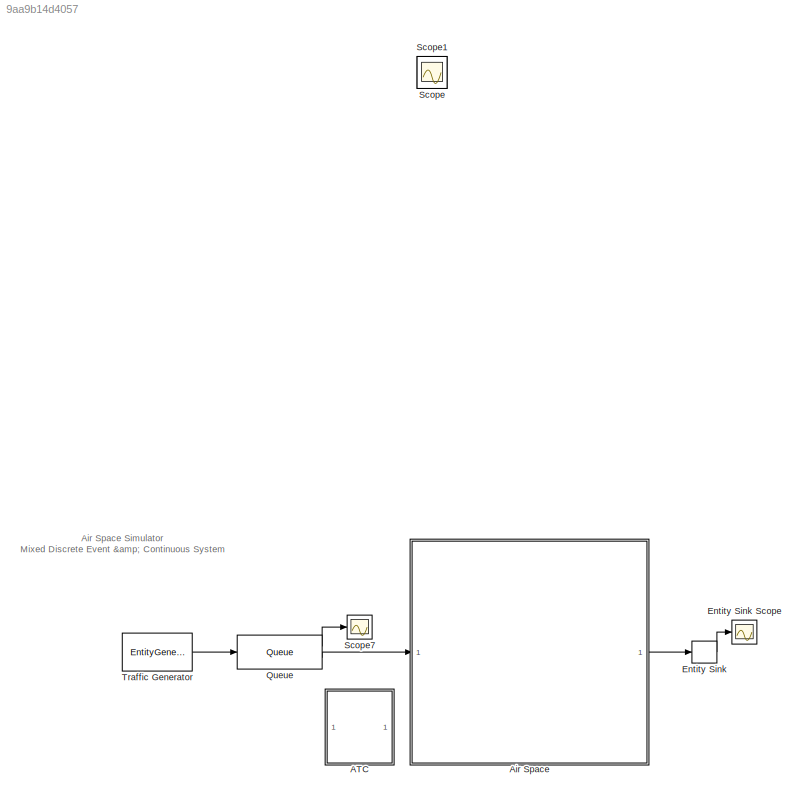
MODEL slx_9aa9b14d4057
KIND model
CONFIG AbsTol = auto
CONFIG EnableMultiTasking = off
CONFIG FixedStep = 1
CONFIG InitFcn = clear all\nclc\n\n%run config_Houston.m\nrun config_Malaga.m\n\nload('PBNsim_buses');
CONFIG MaxStep = auto
CONFIG MinStep = auto
CONFIG RelTol = 1e-3
CONFIG SampleTimeConstraint = Unconstrained
CONFIG SolverName = ode3
CONFIG StartFcn = rng('shuffle');\n
CONFIG StartTime = 0.0
CONFIG StopTime = 5000
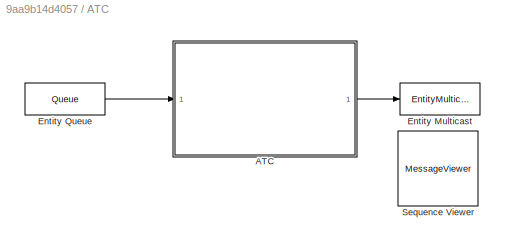
BLOCK [SubSystem] ATC
  Ports = []
  RequestExecContextInheritance = off
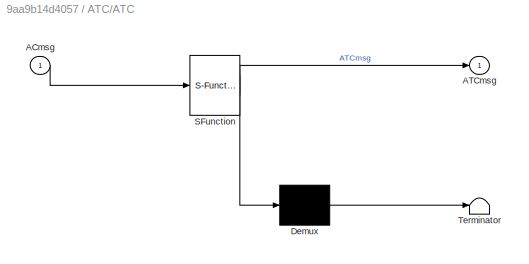
BLOCK [SubSystem] ATC/ATC
  ErrorFcn = Stateflow.Translate.translate
  PermitHierarchicalResolution = ExplicitOnly
  Ports = [1, 1]
  RequestExecContextInheritance = off
  SFBlockType = Chart
  TreatAsAtomicUnit = on
BLOCK [Demux] ATC/ATC/ Demux 
  Outputs = 1
  Ports = [1, 1]
BLOCK [S-Function] ATC/ATC/ SFunction 
  EnableBusSupport = on
  FunctionName = sf_sfun
  InputPortMessageModes = m
  OutputPortMessageModes = n,m
  Parameters = WP,WPabort,WPnext,WPspeed
  PortCounts = [1 2]
  Ports = [1, 2]
  SFcnIsStateOwnerBlock = off
  SFunctionDeploymentMode = off
  Tag = Stateflow S-Function 2
BLOCK [Terminator] ATC/ATC/ Terminator 
BLOCK [Inport] ATC/ATC/ACmsg
BLOCK [Outport] ATC/ATC/ATCmsg
  VectorParamsAs1DForOutWhenUnconnected = off
BLOCK [EntityMulticast] ATC/Entity Multicast
  InputPortMessageModes = m
  MulticastTag = ATCcomm
BLOCK [Queue] ATC/Entity Queue
  Capacity = 100
  EntityArrivalSource = Multicast
  MulticastTag = ACcomm
  OutputPortMap = o5
  OutputPortMessageModes = m
  Ports = [0, 1]
BLOCK [MessageViewer] ATC/Sequence Viewer
  Commented = on
  History = 1000
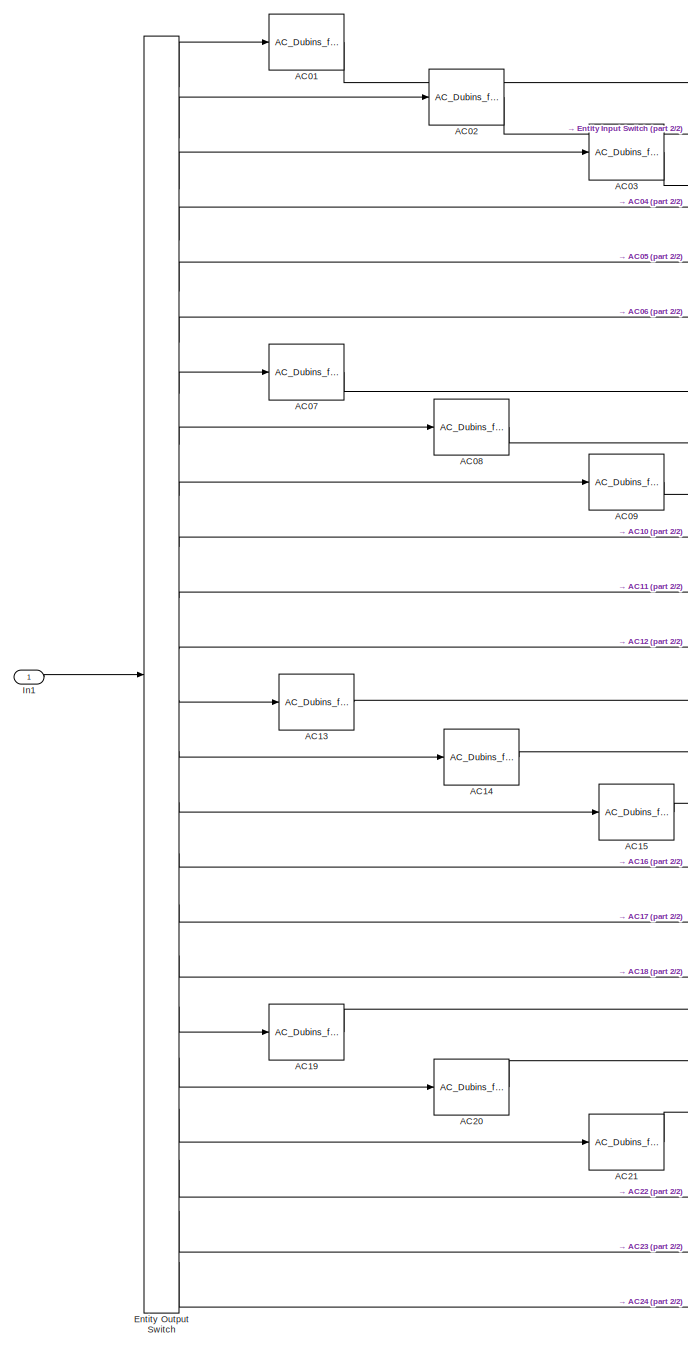
[diagram: Air Space - part 1/2, left side, full height]
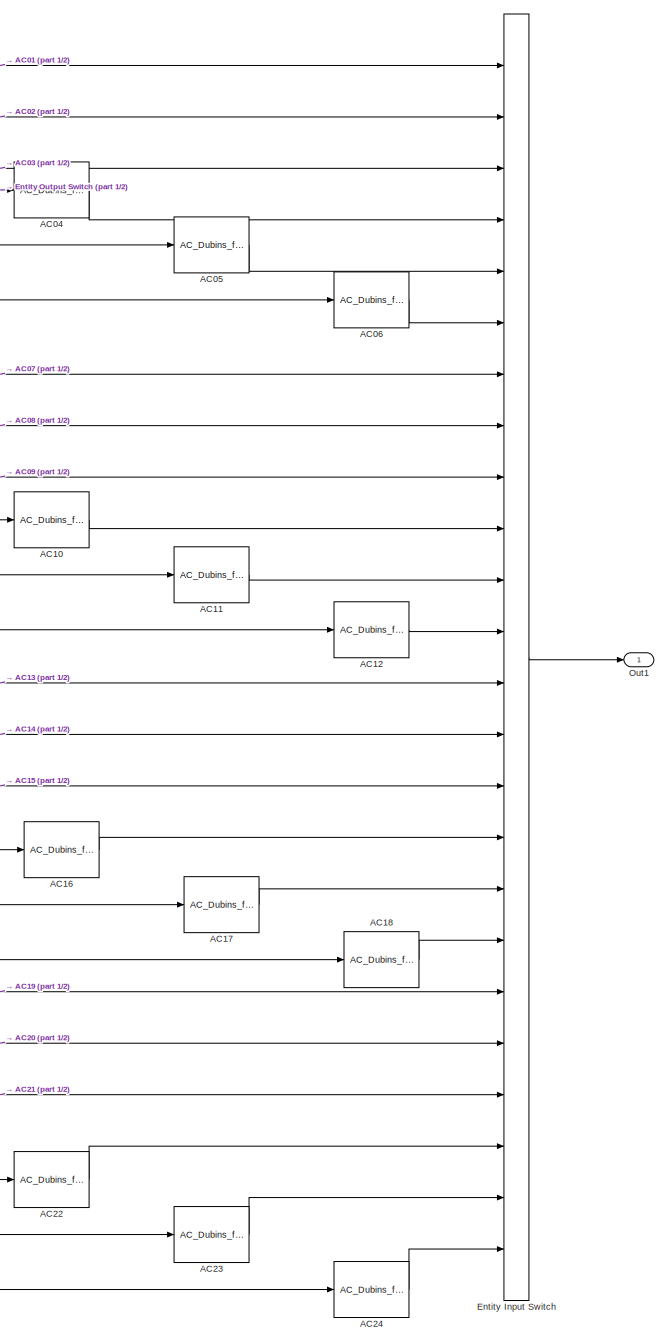
[diagram: Air Space - part 2/2, right side, full height]
BLOCK [SubSystem] Air Space
  Ports = [1, 1]
  RequestExecContextInheritance = off
BLOCK [Reference] Air Space/AC01  REF=AC/AC_Dubins_flyable
  Ports = [1, 1]
  SourceBlock = AC/AC_Dubins_flyable
  SourceType = SubSystem
BLOCK [Reference] Air Space/AC02  REF=AC/AC_Dubins_flyable
  Ports = [1, 1]
  SourceBlock = AC/AC_Dubins_flyable
  SourceType = SubSystem
BLOCK [Reference] Air Space/AC03  REF=AC/AC_Dubins_flyable
  Ports = [1, 1]
  SourceBlock = AC/AC_Dubins_flyable
  SourceType = SubSystem
BLOCK [Reference] Air Space/AC04  REF=AC/AC_Dubins_flyable
  Ports = [1, 1]
  SourceBlock = AC/AC_Dubins_flyable
  SourceType = SubSystem
BLOCK [Reference] Air Space/AC05  REF=AC/AC_Dubins_flyable
  Ports = [1, 1]
  SourceBlock = AC/AC_Dubins_flyable
  SourceType = SubSystem
BLOCK [Reference] Air Space/AC06  REF=AC/AC_Dubins_flyable
  Ports = [1, 1]
  SourceBlock = AC/AC_Dubins_flyable
  SourceType = SubSystem
BLOCK [Reference] Air Space/AC07  REF=AC/AC_Dubins_flyable
  Ports = [1, 1]
  SourceBlock = AC/AC_Dubins_flyable
  SourceType = SubSystem
BLOCK [Reference] Air Space/AC08  REF=AC/AC_Dubins_flyable
  Ports = [1, 1]
  SourceBlock = AC/AC_Dubins_flyable
  SourceType = SubSystem
BLOCK [Reference] Air Space/AC09  REF=AC/AC_Dubins_flyable
  Ports = [1, 1]
  SourceBlock = AC/AC_Dubins_flyable
  SourceType = SubSystem
BLOCK [Reference] Air Space/AC10  REF=AC/AC_Dubins_flyable
  Ports = [1, 1]
  SourceBlock = AC/AC_Dubins_flyable
  SourceType = SubSystem
BLOCK [Reference] Air Space/AC11  REF=AC/AC_Dubins_flyable
  Ports = [1, 1]
  SourceBlock = AC/AC_Dubins_flyable
  SourceType = SubSystem
BLOCK [Reference] Air Space/AC12  REF=AC/AC_Dubins_flyable
  Ports = [1, 1]
  SourceBlock = AC/AC_Dubins_flyable
  SourceType = SubSystem
BLOCK [Reference] Air Space/AC13  REF=AC/AC_Dubins_flyable
  Ports = [1, 1]
  SourceBlock = AC/AC_Dubins_flyable
  SourceType = SubSystem
BLOCK [Reference] Air Space/AC14  REF=AC/AC_Dubins_flyable
  Ports = [1, 1]
  SourceBlock = AC/AC_Dubins_flyable
  SourceType = SubSystem
BLOCK [Reference] Air Space/AC15  REF=AC/AC_Dubins_flyable
  Ports = [1, 1]
  SourceBlock = AC/AC_Dubins_flyable
  SourceType = SubSystem
BLOCK [Reference] Air Space/AC16  REF=AC/AC_Dubins_flyable
  Ports = [1, 1]
  SourceBlock = AC/AC_Dubins_flyable
  SourceType = SubSystem
BLOCK [Reference] Air Space/AC17  REF=AC/AC_Dubins_flyable
  Ports = [1, 1]
  SourceBlock = AC/AC_Dubins_flyable
  SourceType = SubSystem
BLOCK [Reference] Air Space/AC18  REF=AC/AC_Dubins_flyable
  Ports = [1, 1]
  SourceBlock = AC/AC_Dubins_flyable
  SourceType = SubSystem
BLOCK [Reference] Air Space/AC19  REF=AC/AC_Dubins_flyable
  Ports = [1, 1]
  SourceBlock = AC/AC_Dubins_flyable
  SourceType = SubSystem
BLOCK [Reference] Air Space/AC20  REF=AC/AC_Dubins_flyable
  Ports = [1, 1]
  SourceBlock = AC/AC_Dubins_flyable
  SourceType = SubSystem
BLOCK [Reference] Air Space/AC21  REF=AC/AC_Dubins_flyable
  Ports = [1, 1]
  SourceBlock = AC/AC_Dubins_flyable
  SourceType = SubSystem
BLOCK [Reference] Air Space/AC22  REF=AC/AC_Dubins_flyable
  Ports = [1, 1]
  SourceBlock = AC/AC_Dubins_flyable
  SourceType = SubSystem
BLOCK [Reference] Air Space/AC23  REF=AC/AC_Dubins_flyable
  Ports = [1, 1]
  SourceBlock = AC/AC_Dubins_flyable
  SourceType = SubSystem
BLOCK [Reference] Air Space/AC24  REF=AC/AC_Dubins_flyable
  Ports = [1, 1]
  SourceBlock = AC/AC_Dubins_flyable
  SourceType = SubSystem
BLOCK [EntityInputSwitch] Air Space/Entity Input Switch
  InputPortMap = u1,u2,u3,u4,u5,u6,u7,u8,u9,u10,u11,u12,u13,u14,u15,u16,u17,u18,u19,u20,u21,u22,u23,u24
  InputPortMessageModes = m,m,m,m,m,m,m,m,m,m,m,m,m,m,m,m,m,m,m,m,m,m,m,m
  NumberInputPorts = 24
  OutputPortMap = o0
  OutputPortMessageModes = m
  Ports = [24, 1]
BLOCK [EntityOutputSwitch] Air Space/Entity Output Switch
  InputPortMap = u1
  InputPortMessageModes = m
  NumberOutputPorts = 24
  OutputPortMap = o0,o1,o2,o3,o4,o5,o6,o7,o8,o9,o10,o11,o12,o13,o14,o15,o16,o17,o18,o19,o20,o21,o22,o23
  OutputPortMessageModes = m,m,m,m,m,m,m,m,m,m,m,m,m,m,m,m,m,m,m,m,m,m,m,m
  Ports = [1, 24]
  SwitchAttributeName = Attribute1
BLOCK [Inport] Air Space/In1
BLOCK [Outport] Air Space/Out1
BLOCK [EntityTerminator] Entity Sink
  EntryAction = coder.extrinsic('get_param')\ncurrentTime = 0;\n%currentTime = get_param('simulator18b','SimulationTime');\ncurrentTime = get_param(get_param(0,'CurrentSystem'),'SimulationTime');\nflightTime  = currentTime -entity.startTime;\n\nfprintf('%5.0f: aeronave %3.0f aterriza en %4.0f s\n',...\n    currentTime,...\n    entity.flightId,...\n    flightTime);
  InputPortMap = u0
  InputPortMessageModes = m
  NumberEntitiesArrived = on
  OutputPortMap = o0
  Ports = [1, 1]
BLOCK [Scope] Entity Sink Scope
  Commented = on
  Floating = off
  NumInputPorts = 1
  Ports = [1]
  ScopeSpecificationString = Simulink.scopes.TimeScopeBlockCfg('CurrentConfiguration', extmgr.ConfigurationSet(extmgr.Configuration('Core','General UI',true,'ShowStatusbar',false),extmgr.Configuration('Core','Source UI',true),extmgr.Configuration('Sources','WiredSimulink',true,'DataLoggingVariableName','ScopeData1'),extmgr.Configuration('Visuals','Time Domain',true,'SerializedDisplays',{struct('MinYLimReal','-0.375','MaxYLimR...<+1555ch>
BLOCK [Queue] Queue
  BlockedAction = coder.extrinsic('set_param','gcs');\nset_param(gcs, 'SimulationCommand', 'stop');\n\ndisp('Simulación interrumpida: no hay aviones suficientes para satisfacer la demanda de tráfico aéreo');
  Capacity = 10
  InputPortMap = u0
  InputPortMessageModes = m
  NumberEntitiesInBlock = on
  OutputPortMap = o1,o5
  OutputPortMessageModes = n,m
  Ports = [1, 2]
  PrioritySource = PriorityAttributeName
BLOCK [Scope] Scope
  Floating = off
  IOType = viewer
  NumInputPorts = 1
  Ports = []
  ScopeSpecificationString = Simulink.scopes.TimeScopeBlockCfg('CurrentConfiguration', extmgr.ConfigurationSet(extmgr.Configuration('Core','General UI',true),extmgr.Configuration('Core','Source UI',true),extmgr.Configuration('Sources','WiredSimulink',true,'DataLoggingVariableName','ScopeData2'),extmgr.Configuration('Visuals','Time Domain',true,'SerializedDisplays',{struct('MinYLimReal','-0.05483','MaxYLimReal','0.05483','YLab...<+1418ch>
BLOCK [Scope] Scope1
  Floating = off
  IOType = viewer
  NumInputPorts = 1
  Ports = []
  ScopeSpecificationString = Simulink.scopes.TimeScopeBlockCfg('CurrentConfiguration', extmgr.ConfigurationSet(extmgr.Configuration('Core','General UI',true),extmgr.Configuration('Core','Source UI',true),extmgr.Configuration('Sources','WiredSimulink',true,'DataLoggingVariableName','ScopeData1'),extmgr.Configuration('Visuals','Time Domain',true,'SerializedDisplays',{struct('MinYLimReal','-0.05483','MaxYLimReal','0.05483','YLab...<+1389ch>
BLOCK [Scope] Scope7
  Commented = on
  Floating = off
  NumInputPorts = 1
  Ports = [1]
  ScopeSpecificationString = Simulink.scopes.TimeScopeBlockCfg('CurrentConfiguration', extmgr.ConfigurationSet(extmgr.Configuration('Core','General UI',true,'ShowStatusbar',false),extmgr.Configuration('Core','Source UI',true),extmgr.Configuration('Sources','WiredSimulink',true,'DataLoggingVariableName','ScopeData3'),extmgr.Configuration('Visuals','Time Domain',true,'SerializedDisplays',{struct('MinYLimReal','-0.2','MaxYLimRea...<+1554ch>
BLOCK [EntityGenerator] Traffic Generator
  AttributeInitialValue = 0|0
  AttributeName = flightId|startTime
  EntityType = Structured
  EntityTypeName = aircraft
  GenerateAction = persistent next_flightId;\nif isempty(next_flightId)\n    next_flightId = 1;\nend\nentity.flightId = next_flightId;\nnext_flightId = next_flightId + 1;\n\ncoder.extrinsic('get_param')\n%entity.startTime = get_param('simulator18b','SimulationTime');\nentity.startTime = get_param(get_param(0,'CurrentSystem'),'SimulationTime');\nfprintf('%5.0f: aeronave %3.0f entra en espacio aereo\n',entity.startTime,entity.f...<+9ch>
  IntergenerationTimeAction = % Pattern: Repeating Sequence\npersistent SEQ1;\npersistent idx1;\nif isempty(SEQ1)\n    \n    % PRUEBAS EN MALAGA: \n    SEQ1 = [ 90 90 90 90 90 90 90         180        90 ];\n    \n    idx1 = 1;\nend\n\ndt = SEQ1(idx1);\n\nif idx1 == numel(SEQ1)\n    idx1 = 1;    \nelse\n    idx1 = idx1 + 1;\nend\n\n%% para generar un solo avion descomentar lo siguiente\n% dt = inf
  OutputPortMap = o3
  OutputPortMessageModes = m
  Period = 120
  Ports = [0, 1]
  TimeSource = MATLAB action
ANNOTATION (root): Air Space Simulator Mixed Discrete Event & Continuous System
LINE ATC/ATC:1 -> ATC/Entity Multicast:1
LINE ATC/Entity Queue:1 -> ATC/ATC:1
LINE Air Space/AC01:1 -> Air Space/Entity Input Switch:1
LINE Air Space/AC02:1 -> Air Space/Entity Input Switch:2
LINE Air Space/AC03:1 -> Air Space/Entity Input Switch:3
LINE Air Space/AC04:1 -> Air Space/Entity Input Switch:4
LINE Air Space/AC05:1 -> Air Space/Entity Input Switch:5
LINE Air Space/AC06:1 -> Air Space/Entity Input Switch:6
LINE Air Space/AC07:1 -> Air Space/Entity Input Switch:7
LINE Air Space/AC08:1 -> Air Space/Entity Input Switch:8
LINE Air Space/AC09:1 -> Air Space/Entity Input Switch:9
LINE Air Space/AC10:1 -> Air Space/Entity Input Switch:10
LINE Air Space/AC11:1 -> Air Space/Entity Input Switch:11
LINE Air Space/AC12:1 -> Air Space/Entity Input Switch:12
LINE Air Space/AC13:1 -> Air Space/Entity Input Switch:13
LINE Air Space/AC14:1 -> Air Space/Entity Input Switch:14
LINE Air Space/AC15:1 -> Air Space/Entity Input Switch:15
LINE Air Space/AC16:1 -> Air Space/Entity Input Switch:16
LINE Air Space/AC17:1 -> Air Space/Entity Input Switch:17
LINE Air Space/AC18:1 -> Air Space/Entity Input Switch:18
LINE Air Space/AC19:1 -> Air Space/Entity Input Switch:19
LINE Air Space/AC20:1 -> Air Space/Entity Input Switch:20
LINE Air Space/AC21:1 -> Air Space/Entity Input Switch:21
LINE Air Space/AC22:1 -> Air Space/Entity Input Switch:22
LINE Air Space/AC23:1 -> Air Space/Entity Input Switch:23
LINE Air Space/AC24:1 -> Air Space/Entity Input Switch:24
LINE Air Space/Entity Input Switch:1 -> Air Space/Out1:1
LINE Air Space/Entity Output Switch:1 -> Air Space/AC01:1
LINE Air Space/Entity Output Switch:10 -> Air Space/AC10:1
LINE Air Space/Entity Output Switch:11 -> Air Space/AC11:1
LINE Air Space/Entity Output Switch:12 -> Air Space/AC12:1
LINE Air Space/Entity Output Switch:13 -> Air Space/AC13:1
LINE Air Space/Entity Output Switch:14 -> Air Space/AC14:1
LINE Air Space/Entity Output Switch:15 -> Air Space/AC15:1
LINE Air Space/Entity Output Switch:16 -> Air Space/AC16:1
LINE Air Space/Entity Output Switch:17 -> Air Space/AC17:1
LINE Air Space/Entity Output Switch:18 -> Air Space/AC18:1
LINE Air Space/Entity Output Switch:19 -> Air Space/AC19:1
LINE Air Space/Entity Output Switch:2 -> Air Space/AC02:1
LINE Air Space/Entity Output Switch:20 -> Air Space/AC20:1
LINE Air Space/Entity Output Switch:21 -> Air Space/AC21:1
LINE Air Space/Entity Output Switch:22 -> Air Space/AC22:1
LINE Air Space/Entity Output Switch:23 -> Air Space/AC23:1
LINE Air Space/Entity Output Switch:24 -> Air Space/AC24:1
LINE Air Space/Entity Output Switch:3 -> Air Space/AC03:1
LINE Air Space/Entity Output Switch:4 -> Air Space/AC04:1
LINE Air Space/Entity Output Switch:5 -> Air Space/AC05:1
LINE Air Space/Entity Output Switch:6 -> Air Space/AC06:1
LINE Air Space/Entity Output Switch:7 -> Air Space/AC07:1
LINE Air Space/Entity Output Switch:8 -> Air Space/AC08:1
LINE Air Space/Entity Output Switch:9 -> Air Space/AC09:1
LINE Air Space/In1:1 -> Air Space/Entity Output Switch:1
LINE Air Space:1 -> Entity Sink:1
LINE Entity Sink:1 -> Entity Sink Scope:1
LINE Queue:1 -> Scope7:1
LINE Queue:2 -> Air Space:1
LINE Traffic Generator:1 -> Queue:1
CHART ATC/ATC states=3 transitions=5
  STATE_LABEL 'COMMUNICATIONS\nentry,during:\nmsgProcess'
  STATE_LABEL 'msgProcess'
  STATE_LABEL 'ACmsgProcess'
  STATE_LABEL "SCRIPT:\nfunction ACmsgProcess\ncoder.extrinsic('delete')\ncoder.extrinsic('get_param')\ncoder.extrinsic('set_param')\n\npersistent emptyAC AC WP2\npersistent i_plot\npersistent abortACid abortTime timeFromAbort\npersistent logAC\n\nif(isempty(abortACid))\n  abortACid = 0;\nend\n\nif(isempty(abortTime))\n  abortTime = 0;\nend\n\nif(isempty(timeFromAbort))\n  timeFromAbort = 0;\nend\n\nif(isempty(logAC))\n    logAC = fope...<+3608ch>"  <repeated x3 — deduplicated; at blocks: ATC>
  STATE_LABEL 'ACmsg'
  STATE_LABEL '{ACmsgProcess}'
  STATE_LABEL 'msgProcess'
  STATE_LABEL 'ACmsgProcess'
  STATE_LABEL 'ACmsg'
  STATE_LABEL '{ACmsgProcess}'
  STATE_LABEL 'ACmsgProcess'
CHART  states=0 transitions=0
